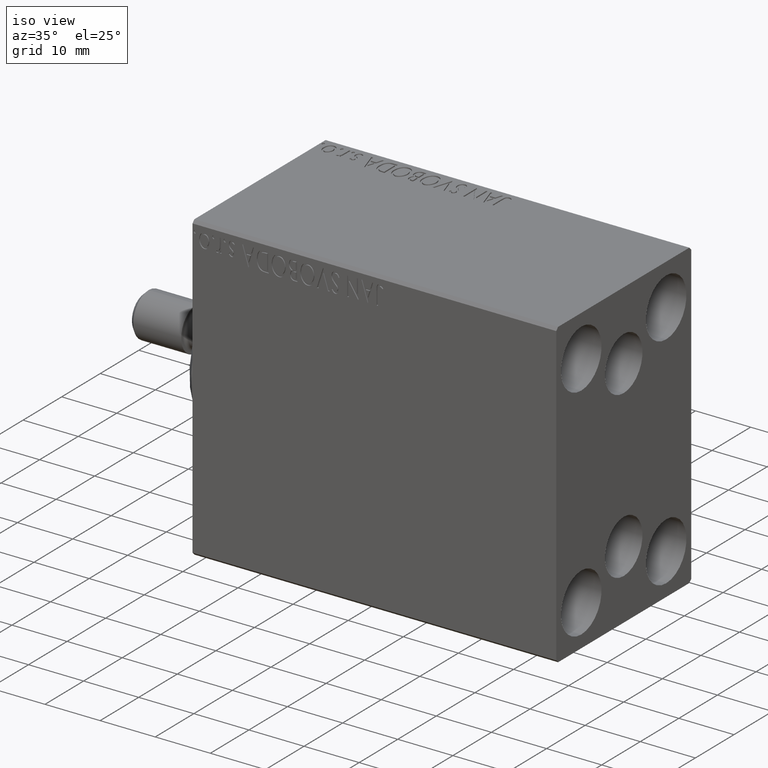
[diagram: clean part render]
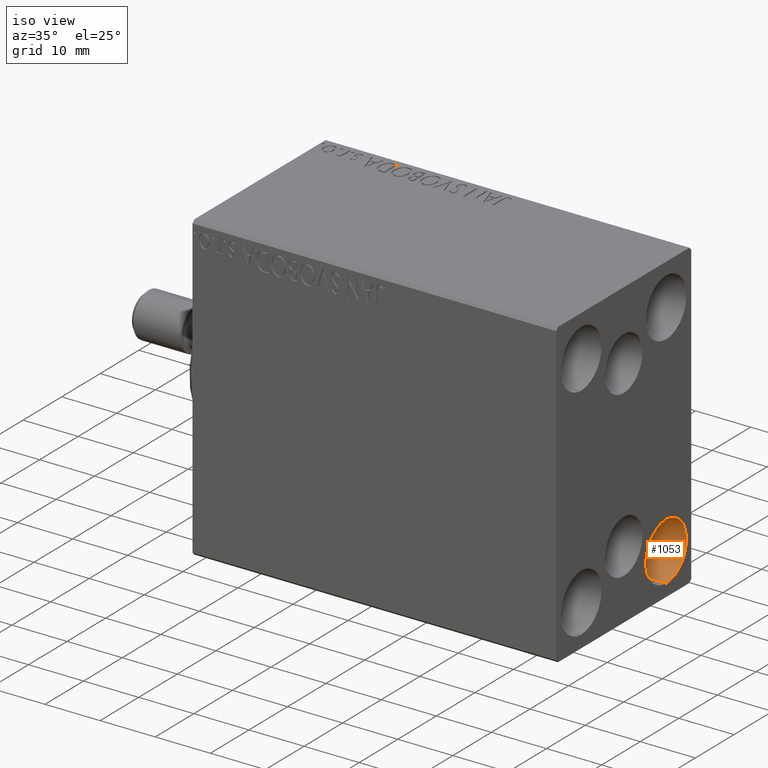
[diagram: same view with one face highlighted and labeled with its STEP entity id]
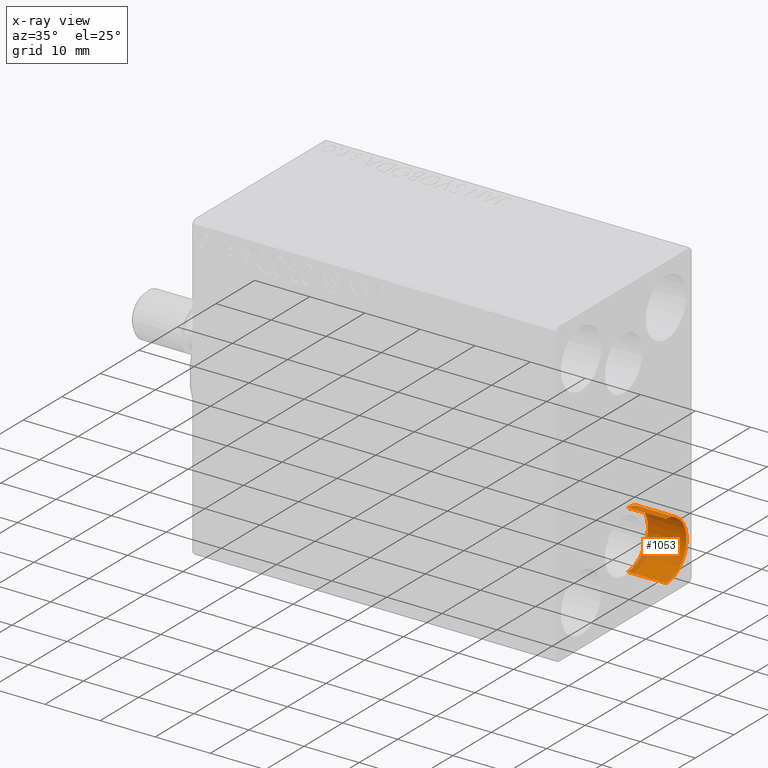
[diagram: x-ray of the same camera — body ghosted, the highlighted face saturated]
A machine part, iso view. The second image highlights one B-rep face of the part: STEP entity #1053.
The next image is the same camera in x-ray: the body ghosted, the highlighted face saturated — about 12% of this face is hidden behind the body in this view.
In plain terms, the highlighted cylindrical surface (edge-blend (fillet) strip) has radius 5.25 mm, axis along (1, 0, 0).
Its self-contained STEP definition (entity closure, byte-faithful):
#1053 = ADVANCED_FACE ( 'NONE', ( #35797 ), #39600, .F. ) ;
#1280 = DIRECTION ( 'NONE',  ( 0.000000000000000000, 0.000000000000000000, -1.000000000000000000 ) ) ;
#3685 = DIRECTION ( 'NONE',  ( 1.000000000000000000, -0.000000000000000000, -0.000000000000000000 ) ) ;
#5180 = EDGE_CURVE ( 'NONE', #22382, #22481, #23403, .T. ) ;
#6904 = ORIENTED_EDGE ( 'NONE', *, *, #44380, .F. ) ;
#7572 = CARTESIAN_POINT ( 'NONE',  ( 59.00000000000000711, 11.00000000000000355, -20.00000000000000000 ) ) ;
#7668 = DIRECTION ( 'NONE',  ( -1.000000000000000000, -0.000000000000000000, -0.000000000000000000 ) ) ;
#10502 = AXIS2_PLACEMENT_3D ( 'NONE', #7572, #14952, #42308 ) ;
#11750 = ORIENTED_EDGE ( 'NONE', *, *, #42578, .T. ) ;
#11813 = DIRECTION ( 'NONE',  ( 1.000000000000000000, -0.000000000000000000, -0.000000000000000000 ) ) ;
#12464 = CARTESIAN_POINT ( 'NONE',  ( 66.00000000000000000, 11.00000000000000355, -25.25000000000000000 ) ) ;
#14577 = CARTESIAN_POINT ( 'NONE',  ( 59.00000000000000711, 11.00000000000000355, -25.25000000000000000 ) ) ;
#14952 = DIRECTION ( 'NONE',  ( -1.000000000000000000, -0.000000000000000000, -0.000000000000000000 ) ) ;
#16131 = AXIS2_PLACEMENT_3D ( 'NONE', #19209, #11813, #1280 ) ;
#16383 = VERTEX_POINT ( 'NONE', #14577 ) ;
#19209 = CARTESIAN_POINT ( 'NONE',  ( 59.00000000000000711, 11.00000000000000355, -20.00000000000000000 ) ) ;
#20510 = CIRCLE ( 'NONE', #10502, 5.250000000000000888 ) ;
#21404 = VERTEX_POINT ( 'NONE', #29380 ) ;
#21782 = DIRECTION ( 'NONE',  ( 0.000000000000000000, 0.000000000000000000, 1.000000000000000000 ) ) ;
#22382 = VERTEX_POINT ( 'NONE', #38132 ) ;
#22481 = VERTEX_POINT ( 'NONE', #12464 ) ;
#23403 = CIRCLE ( 'NONE', #32675, 5.250000000000000888 ) ;
#23984 = EDGE_LOOP ( 'NONE', ( #6904, #32044, #11750, #32369 ) ) ;
#24079 = CARTESIAN_POINT ( 'NONE',  ( 59.00000000000000711, 11.00000000000000355, -14.75000000000000000 ) ) ;
#26385 = DIRECTION ( 'NONE',  ( 1.000000000000000000, -0.000000000000000000, -0.000000000000000000 ) ) ;
#27798 = VECTOR ( 'NONE', #3685, 1000.000000000000000 ) ;
#29380 = CARTESIAN_POINT ( 'NONE',  ( 59.00000000000000711, 11.00000000000000355, -14.75000000000000000 ) ) ;
#32044 = ORIENTED_EDGE ( 'NONE', *, *, #38100, .T. ) ;
#32369 = ORIENTED_EDGE ( 'NONE', *, *, #5180, .F. ) ;
#32675 = AXIS2_PLACEMENT_3D ( 'NONE', #35888, #7668, #21782 ) ;
#32779 = VECTOR ( 'NONE', #26385, 1000.000000000000000 ) ;
#33337 = LINE ( 'NONE', #37151, #32779 ) ;
#35797 = FACE_OUTER_BOUND ( 'NONE', #23984, .T. ) ;
#35888 = CARTESIAN_POINT ( 'NONE',  ( 66.00000000000000000, 11.00000000000000355, -20.00000000000000000 ) ) ;
#37151 = CARTESIAN_POINT ( 'NONE',  ( 59.00000000000000711, 11.00000000000000355, -25.25000000000000000 ) ) ;
#37522 = LINE ( 'NONE', #24079, #27798 ) ;
#38100 = EDGE_CURVE ( 'NONE', #21404, #16383, #20510, .T. ) ;
#38132 = CARTESIAN_POINT ( 'NONE',  ( 66.00000000000000000, 11.00000000000000355, -14.75000000000000000 ) ) ;
#39600 = CYLINDRICAL_SURFACE ( 'NONE', #16131, 5.250000000000000888 ) ;
#42308 = DIRECTION ( 'NONE',  ( 0.000000000000000000, 0.000000000000000000, 1.000000000000000000 ) ) ;
#42578 = EDGE_CURVE ( 'NONE', #16383, #22481, #33337, .T. ) ;
#44380 = EDGE_CURVE ( 'NONE', #21404, #22382, #37522, .T. ) ;